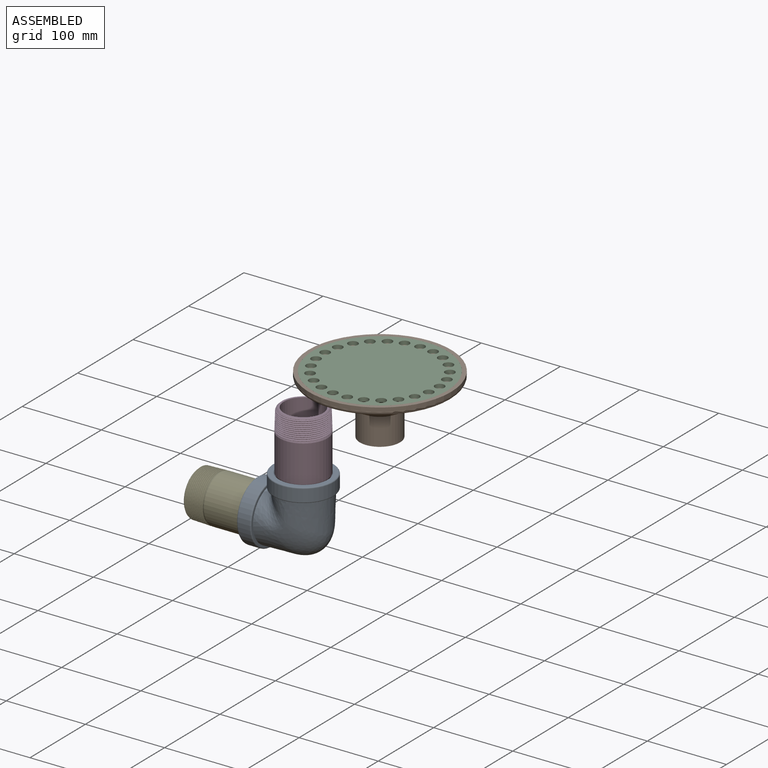
[diagram: assembled view]
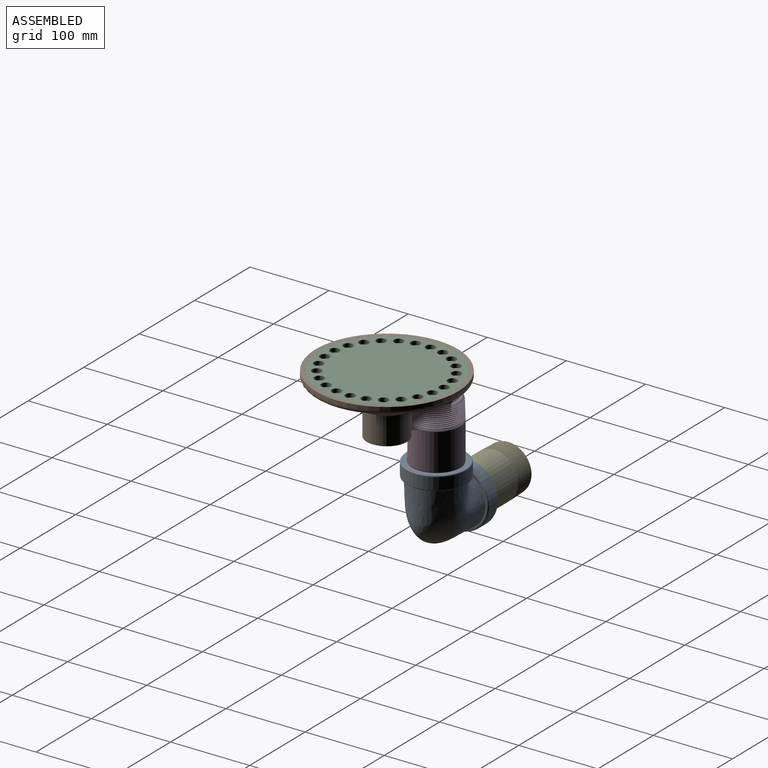
[diagram: assembled view, second angle]
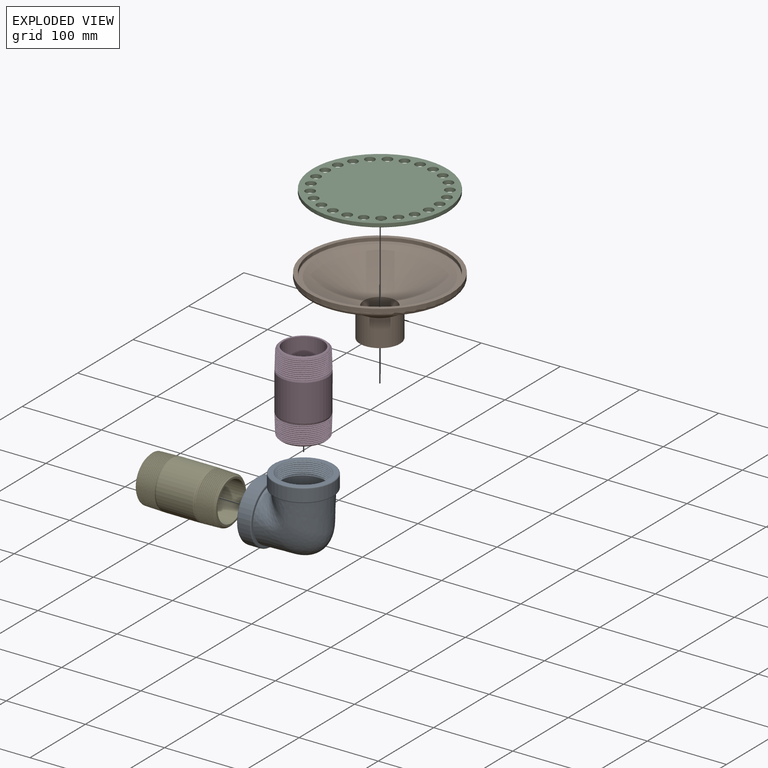
[diagram: exploded view]
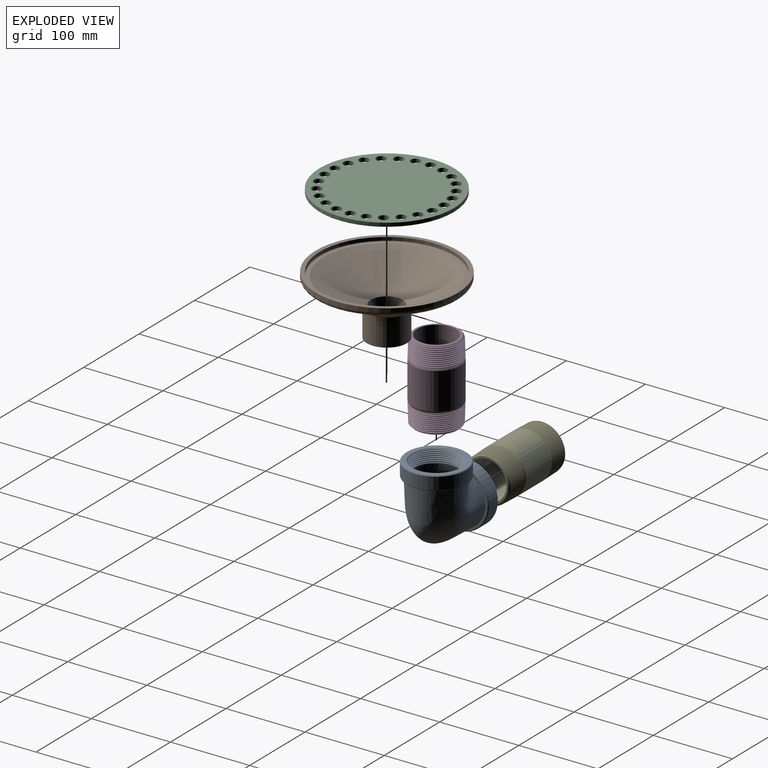
[diagram: exploded view, second angle]
ASSEMBLY  parts=5 mates=3
PART A: 26 faces, bbox 100.6x100.4x82.8 mm
  f0: bspline ~62.1x62.09mm, area 2329.5mm2, adj f2,f6,f7,f20
  f1: bspline ~61.94x61.91mm, area 2411.1mm2, adj f2,f6,f7,f20
  f2: bspline ~59.01x58.97mm, area 374.9mm2, adj f0,f1,f7,f20
  f3: plane 72.79x72.79mm, normal (1,0,0), area 516.3mm2, adj f8,f24
  f4: cylinder r=37.85mm len=75.69mm, axis (1,0,0), area 3604.1mm2, adj f24,f25
  f5: plane 72.79x72.79mm, normal (-1,0,0), area 1188.3mm2, adj f7,f25
  f6: cone r=30.16mm half-angle=1.5deg, axis (-1,0,0), area 382.4mm2, adj f0,f1,f7,f20
  f7: cone r=30.76mm half-angle=45deg, axis (-1,0,0), area 227.1mm2, adj f0,f1,f2,f5,f6
  f8: bspline ~73.95x73.95mm, area 15596.8mm2, adj f3,f16
  f9: bspline ~59.01x58.97mm, area 367.2mm2, adj f10,f12,f17,f18,f19
  f10: bspline ~62.08x61.98mm, area 2336.3mm2, adj f9,f14,f18,f19
  f11: bspline ~61.99x61.95mm, area 47.1mm2, adj f12,f14,f17,f18
  f12: bspline ~61.91x61.88mm, area 2287mm2, adj f9,f11,f17,f18
  f13: plane 72.79x72.79mm, normal (0,1,0), area 1139mm2, adj f18,f23
  f14: cone r=30.16mm half-angle=1.5deg, axis (0,1,0), area 400.1mm2, adj f10,f11,f17,f18,f19
  f15: cylinder r=37.85mm len=75.69mm, axis (0,-1,0), area 3604.1mm2, adj f22,f23
  f16: plane 72.79x72.79mm, normal (0,-1,0), area 516.3mm2, adj f8,f22
  f17: plane 1.46x0.98mm, normal (0,0,1), area 0.8mm2, adj f9,f11,f12,f14,f19
  f18: cone r=31.02mm half-angle=45deg, axis (0,1,0), area 304.6mm2, adj f9,f10,f11,f12,f13,f14
  f19: plane 61.44x61.44mm, normal (0,-1,0), area 87.4mm2, adj f9,f10,f14,f17,f21
  f20: plane 61.4x61.4mm, normal (1,0,0), area 151.6mm2, adj f0,f1,f2,f6,f21
  f21: bspline ~70.13x70.13mm, area 14146.2mm2, adj f19,f20
  f22: torus R=36.39mm, axis (0,1,0), area 534.6mm2, adj f15,f16
  f23: torus R=36.39mm, axis (0,1,0), area 534.6mm2, adj f13,f15
  f24: torus R=36.39mm, axis (1,0,0), area 534.6mm2, adj f3,f4
  f25: torus R=36.39mm, axis (1,0,0), area 534.6mm2, adj f4,f5
PART B: 12 faces, bbox 194.8x194.8x75 mm
  f0: cylinder r=20.4mm len=40.8mm, axis (0,0,-1), area 4774.9mm2, adj f1,f9
  f1: plane 50.8x50.8mm, normal (0,0,-1), area 719.4mm2, adj f0,f2
  f2: cylinder r=25.4mm len=50.8mm, axis (0,0,-1), area 5473.2mm2, adj f1,f3
  f3: cone r=25.4mm half-angle=61.2deg, axis (0,0,1), area 21370.5mm2, adj f2,f4
  f4: plane 170x170mm, normal (0,0,-1), area 1941.7mm2, adj f3,f10
  f5: cylinder r=90mm len=180mm, axis (0,0,-1), area 2827.4mm2, adj f6,f10
  f6: plane 180x180mm, normal (0,0,1), area 2748.9mm2, adj f5,f7
  f7: cylinder r=85mm len=170mm, axis (0,0,-1), area 2136.3mm2, adj f6,f11
  f8: plane 168x168mm, normal (0,0,1), area 2060.9mm2, adj f9,f11
  f9: cone r=20.4mm half-angle=61.2deg, axis (0,0,1), area 21449.5mm2, adj f0,f8
  f10: torus R=85mm, axis (0,0,1), area 4351.7mm2, adj f4,f5
  f11: torus R=84mm, axis (0,0,1), area 835.3mm2, adj f7,f8
PART C: 32 faces, bbox 184x184x38 mm
  f0: cylinder r=6.04mm len=12.07mm, axis (0,0,-1), area 189.6mm2, adj f26,f27
  f1: cylinder r=6.04mm len=12.07mm, axis (0,0,-1), area 189.6mm2, adj f26,f27
  f2: cylinder r=6.04mm len=12.07mm, axis (0,0,-1), area 189.6mm2, adj f26,f27
  f3: cylinder r=6.04mm len=12.07mm, axis (0,0,-1), area 189.6mm2, adj f26,f27
  f4: cylinder r=6.04mm len=12.07mm, axis (0,0,-1), area 189.6mm2, adj f26,f27
  f5: cylinder r=6.04mm len=12.07mm, axis (0,0,-1), area 189.6mm2, adj f26,f27
  f6: cylinder r=6.04mm len=12.07mm, axis (0,0,-1), area 189.6mm2, adj f26,f27
  f7: cylinder r=6.04mm len=12.07mm, axis (0,0,-1), area 189.6mm2, adj f26,f27
  f8: cylinder r=6.04mm len=12.07mm, axis (0,0,-1), area 189.6mm2, adj f26,f27
  f9: cylinder r=6.04mm len=12.07mm, axis (0,0,-1), area 189.6mm2, adj f26,f27
  f10: cylinder r=6.04mm len=12.07mm, axis (0,0,-1), area 189.6mm2, adj f26,f27
  f11: cylinder r=6.04mm len=12.07mm, axis (0,0,-1), area 189.6mm2, adj f26,f27
  f12: cylinder r=6.04mm len=12.07mm, axis (0,0,-1), area 189.6mm2, adj f26,f27
  f13: cylinder r=6.04mm len=12.07mm, axis (0,0,-1), area 189.6mm2, adj f26,f27
  f14: cylinder r=6.04mm len=12.07mm, axis (0,0,-1), area 189.6mm2, adj f26,f27
  f15: cylinder r=6.04mm len=12.07mm, axis (0,0,-1), area 189.6mm2, adj f26,f27
  f16: cylinder r=6.04mm len=12.07mm, axis (0,0,-1), area 189.6mm2, adj f26,f27
  f17: cylinder r=6.04mm len=12.07mm, axis (0,0,-1), area 189.6mm2, adj f26,f27
  f18: cylinder r=6.04mm len=12.07mm, axis (0,0,-1), area 189.6mm2, adj f26,f27
  f19: cylinder r=6.04mm len=12.07mm, axis (0,0,-1), area 189.6mm2, adj f26,f27
  f20: cylinder r=6.04mm len=12.07mm, axis (0,0,-1), area 189.6mm2, adj f26,f27
  f21: cylinder r=6.04mm len=12.07mm, axis (0,0,-1), area 189.6mm2, adj f26,f27
  f22: cylinder r=6.04mm len=12.07mm, axis (0,0,-1), area 189.6mm2, adj f26,f27
  f23: cylinder r=6.04mm len=12.07mm, axis (0,0,-1), area 189.6mm2, adj f26,f27
  f24: cylinder r=6.04mm len=12.07mm, axis (0,0,-1), area 189.6mm2, adj f26,f27
  f25: cylinder r=85mm len=170mm, axis (0,0,-1), area 2136.3mm2, adj f26,f29
  f26: plane 170x170mm, normal (0,0,1), area 19836.1mm2, adj f0,f1,f2,f3,f4,f5,f6,f7
  f27: plane 168x168mm, normal (0,0,-1), area 7995.4mm2, adj f0,f1,f2,f3,f4,f5,f6,f7
  f28: cone r=60mm half-angle=61.2deg, axis (0,0,1), area 12904.5mm2, adj f27
  f29: torus R=84mm, axis (0,0,1), area 835.3mm2, adj f25,f27
  f30: cone r=49.62mm half-angle=61.2deg, axis (0,0,1), area 8824.6mm2, adj f31
  f31: plane 99.23x99.23mm, normal (0,0,-1), area 7734.1mm2, adj f30
PART D: 20 faces, bbox 101.9x61x60.9 mm
  f0: bspline ~60.97x60.8mm, area 3267.9mm2, adj f1,f3,f4,f6,f8
  f1: bspline ~57.69x57.59mm, area 520.2mm2, adj f0,f2,f5,f8
  f2: bspline ~60.88x60.8mm, area 3227.2mm2, adj f1,f3,f4,f5,f6,f8
  f3: cone r=28.65mm half-angle=45deg, axis (1,0,0), area 49.1mm2, adj f0,f2,f4,f8
  f4: cone r=30.16mm half-angle=1.8deg, axis (-1,0,0), area 533.6mm2, adj f0,f2,f3,f6
  f5: cone r=27.04mm half-angle=46.8deg, axis (-1,0,0), area 352.3mm2, adj f1,f2,f6,f7
  f6: cone r=27.04mm half-angle=46.8deg, axis (-1,0,0), area 41.9mm2, adj f0,f2,f4,f5
  f7: plane 54.09x54.09mm, normal (1,0,0), area 392.8mm2, adj f5,f19
  f8: cone r=30.16mm half-angle=25deg, axis (-1,0,0), area 409mm2, adj f0,f1,f2,f3,f9
  f9: cylinder r=30.16mm len=60.33mm, axis (1,0,0), area 8857.8mm2, adj f8,f18
  f10: bspline ~60.97x60.8mm, area 3267.9mm2, adj f11,f13,f14,f16,f18
  f11: bspline ~57.69x57.59mm, area 520.2mm2, adj f10,f12,f15,f18
  f12: bspline ~60.88x60.8mm, area 3227.2mm2, adj f11,f13,f14,f15,f16,f18
  f13: cone r=28.65mm half-angle=45deg, axis (-1,0,0), area 49.1mm2, adj f10,f12,f14,f18
  f14: cone r=30.16mm half-angle=1.8deg, axis (1,0,0), area 533.6mm2, adj f10,f12,f13,f16
  f15: cone r=27.04mm half-angle=46.8deg, axis (1,0,0), area 352.3mm2, adj f11,f12,f16,f17
  f16: cone r=27.04mm half-angle=46.8deg, axis (1,0,0), area 41.9mm2, adj f10,f12,f14,f15
  f17: plane 54.09x54.09mm, normal (-1,0,0), area 392.8mm2, adj f15,f19
  f18: cone r=30.16mm half-angle=25deg, axis (1,0,0), area 409mm2, adj f9,f10,f11,f12,f13
  f19: cylinder r=24.63mm len=101.6mm, axis (1,0,0), area 15720.1mm2, adj f7,f17
PART E: same geometry as D
PLACE A rot(axis=(1,0,0),89.9deg) t=(56.55,-144.58,25.38)mm
PLACE B t=(150.86,-141.1,148.09)mm
PLACE C t=(150.86,-141.1,218.09)mm
PLACE D rot(axis=(0.58,0.58,-0.58),119.9deg) t=(56.55,-144.45,106.66)mm
PLACE E rot(axis=(1,0,0),89.9deg) t=(-24.73,-144.58,25.38)mm
MATE fastened A.f4 <-> E.f3  axis (-1,0,0) through (-1.36,-144.58,25.38)mm
MATE fastened D.f3 <-> A.f14  axis (0,0,-1) through (56.55,-144.49,83.29)mm
MATE fastened C.f25 <-> B.f0  axis (0,0,1) through (150.86,-141.1,223.09)mm
